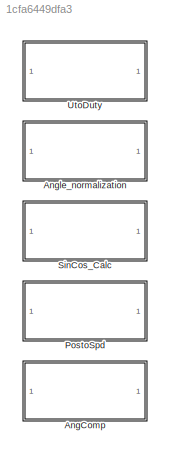
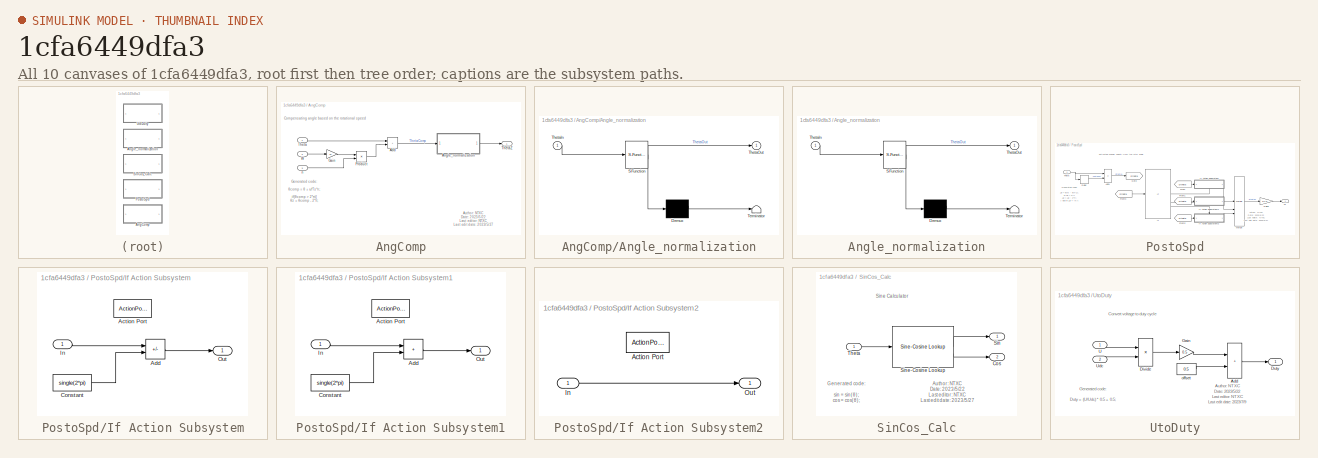
[diagram: thumbnail index - all 10 canvases of the model, root first then tree order]
MODEL slx_1cfa6449dfa3
KIND library
CONFIG AbsTol = auto
CONFIG EnableMultiTasking = off
CONFIG FixedStep = auto
CONFIG MaxStep = auto
CONFIG MinStep = auto
CONFIG RelTol = 1e-3
CONFIG SampleTimeConstraint = Unconstrained
CONFIG SolverName = VariableStepAuto
CONFIG StartTime = 0.0
CONFIG StopTime = 10.0
BLOCK [SubSystem] AngComp
  RTWFcnNameOpts = Use subsystem name
  RTWFileName = Lib_PMSMCtrl
  RTWFileNameOpts = User specified
  RTWSystemCode = Reusable function
  TreatAsAtomicUnit = on
BLOCK [Sum] AngComp/Add
  IconShape = rectangular
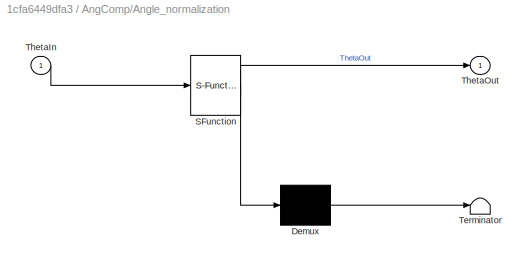
BLOCK [SubSystem] AngComp/Angle_normalization
  ErrorFcn = Stateflow.Translate.translate
  LibrarySourceBlock = simulink/User-Defined\nFunctions/MATLAB Function
  PermitHierarchicalResolution = ExplicitOnly
  SFBlockType = MATLAB Function
  TreatAsAtomicUnit = on
BLOCK [Demux] AngComp/Angle_normalization/ Demux 
  Outputs = 1
BLOCK [S-Function] AngComp/Angle_normalization/ SFunction 
  EnableBusSupport = off
  FunctionName = sf_sfun
  PortCounts = [1 2]
  SFcnIsStateOwnerBlock = off
  SFunctionDeploymentMode = off
  Tag = Stateflow S-Function 1
BLOCK [Terminator] AngComp/Angle_normalization/ Terminator 
BLOCK [Inport] AngComp/Angle_normalization/ThetaIn
BLOCK [Outport] AngComp/Angle_normalization/ThetaOut
BLOCK [Gain] AngComp/Gain
  Gain = Ts
BLOCK [Product] AngComp/Product
BLOCK [Inport] AngComp/Theta
BLOCK [Outport] AngComp/ThetaZ
BLOCK [Inport] AngComp/W
  Port = 2
BLOCK [Inport] AngComp/n
  Port = 3
BLOCK [SubSystem] Angle_normalization
  ErrorFcn = Stateflow.Translate.translate
  LibrarySourceBlock = simulink/User-Defined\nFunctions/MATLAB Function
  PermitHierarchicalResolution = ExplicitOnly
  SFBlockType = MATLAB Function
  TreatAsAtomicUnit = on
BLOCK [Demux] Angle_normalization/ Demux 
  Outputs = 1
BLOCK [S-Function] Angle_normalization/ SFunction 
  EnableBusSupport = off
  FunctionName = sf_sfun
  PortCounts = [1 2]
  SFcnIsStateOwnerBlock = off
  SFunctionDeploymentMode = off
  Tag = Stateflow S-Function 2
BLOCK [Terminator] Angle_normalization/ Terminator 
BLOCK [Inport] Angle_normalization/ThetaIn
BLOCK [Outport] Angle_normalization/ThetaOut
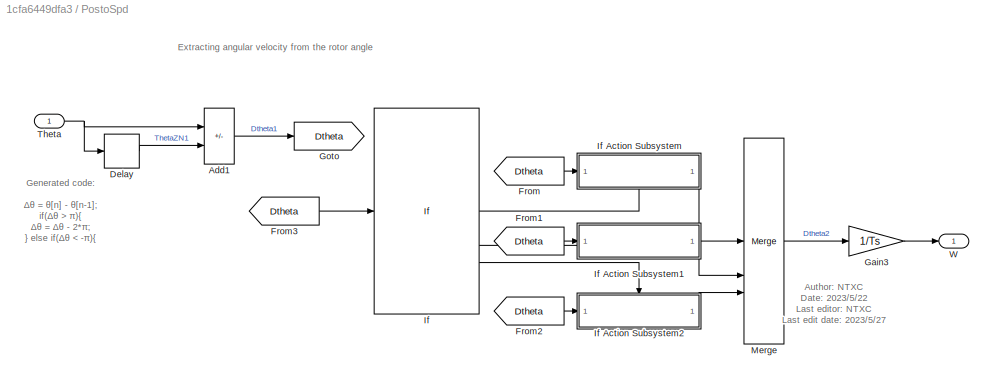
BLOCK [SubSystem] PostoSpd
  RTWFcnNameOpts = Use subsystem name
  RTWFileName = Lib_PMSMCtrl
  RTWFileNameOpts = User specified
  RTWSystemCode = Reusable function
  TreatAsAtomicUnit = on
BLOCK [Sum] PostoSpd/Add1
  IconShape = rectangular
  Inputs = +-
BLOCK [Delay] PostoSpd/Delay
  DelayLength = 1
  InputPortMap = u0
BLOCK [From] PostoSpd/From
  GotoTag = Dtheta
BLOCK [From] PostoSpd/From1
  GotoTag = Dtheta
BLOCK [From] PostoSpd/From2
  GotoTag = Dtheta
BLOCK [From] PostoSpd/From3
  GotoTag = Dtheta
BLOCK [Gain] PostoSpd/Gain3
  Gain = 1/Ts
BLOCK [Goto] PostoSpd/Goto
  GotoTag = Dtheta
BLOCK [If] PostoSpd/If
  ElseIfExpressions = u1 < single(-pi)
  IfExpression = u1 > single(pi)
BLOCK [SubSystem] PostoSpd/If Action Subsystem
  TreatAsAtomicUnit = on
BLOCK [ActionPort] PostoSpd/If Action Subsystem/Action Port
  ActionPortLabel = if(u1 > single(pi))
BLOCK [Sum] PostoSpd/If Action Subsystem/Add
  IconShape = rectangular
  Inputs = +-
BLOCK [Constant] PostoSpd/If Action Subsystem/Constant
  OutDataTypeStr = single
  SampleTime = -1
  Value = single(2*pi)
BLOCK [Inport] PostoSpd/If Action Subsystem/In
BLOCK [Outport] PostoSpd/If Action Subsystem/Out
BLOCK [SubSystem] PostoSpd/If Action Subsystem1
  TreatAsAtomicUnit = on
BLOCK [ActionPort] PostoSpd/If Action Subsystem1/Action Port
  ActionPortLabel = elseif(u1 < single(-pi))
BLOCK [Sum] PostoSpd/If Action Subsystem1/Add
  IconShape = rectangular
BLOCK [Constant] PostoSpd/If Action Subsystem1/Constant
  OutDataTypeStr = single
  SampleTime = -1
  Value = single(2*pi)
BLOCK [Inport] PostoSpd/If Action Subsystem1/In
BLOCK [Outport] PostoSpd/If Action Subsystem1/Out
BLOCK [SubSystem] PostoSpd/If Action Subsystem2
  TreatAsAtomicUnit = on
BLOCK [ActionPort] PostoSpd/If Action Subsystem2/Action Port
  ActionPortLabel = else
BLOCK [Inport] PostoSpd/If Action Subsystem2/In
BLOCK [Outport] PostoSpd/If Action Subsystem2/Out
BLOCK [Merge] PostoSpd/Merge
  Inputs = 3
BLOCK [Inport] PostoSpd/Theta
BLOCK [Outport] PostoSpd/W
BLOCK [SubSystem] SinCos_Calc
  RTWFcnNameOpts = Use subsystem name
  RTWFileName = Lib_PMSMCtrl
  RTWFileNameOpts = User specified
  RTWSystemCode = Reusable function
  TreatAsAtomicUnit = on
BLOCK [Outport] SinCos_Calc/Cos
  Port = 2
BLOCK [Outport] SinCos_Calc/Sin
BLOCK [Reference] SinCos_Calc/Sine-Cosine Lookup  REF=mcbcontrolslib/Sine-Cosine Lookup
  SourceBlock = mcbcontrolslib/Sine-Cosine Lookup
  SourceType = Sine-Cosine Lookup
BLOCK [Inport] SinCos_Calc/Theta
BLOCK [SubSystem] UtoDuty
  RTWFcnNameOpts = Use subsystem name
  RTWFileName = Lib_PMSMCtrl
  RTWFileNameOpts = User specified
  RTWSystemCode = Reusable function
  TreatAsAtomicUnit = on
BLOCK [Sum] UtoDuty/Add
  IconShape = rectangular
BLOCK [Product] UtoDuty/Divide
  Inputs = */
BLOCK [Outport] UtoDuty/Duty
BLOCK [Gain] UtoDuty/Gain
  Gain = 0.5
BLOCK [Inport] UtoDuty/U
BLOCK [Inport] UtoDuty/Udc
  Port = 2
BLOCK [Constant] UtoDuty/offset
  OutDataTypeStr = single
  SampleTime = -1
  Value = 0.5
ANNOTATION AngComp: Compensating angle based on the rotational speed
ANNOTATION AngComp: Author: NTXC Date: 2023/5/22 Last editor: NTXC Last edit date: 2023/5/27
ANNOTATION AngComp: Generated code: θcomp = θ + ω*Ts*n; if(θcomp > 2*π){ θz = θcomp - 2*π; } else if(θcomp < 0){ θz = θcomp + 2*π; } else{ θz = θcomp; }
ANNOTATION PostoSpd: Extracting angular velocity from the rotor angle
ANNOTATION PostoSpd: Author: NTXC Date: 2023/5/22 Last editor: NTXC Last edit date: 2023/5/27
ANNOTATION PostoSpd: Generated code: Δθ = θ[n] - θ[n-1]; if(Δθ > π){ Δθ = Δθ - 2*π; } else if(Δθ < -π){ Δθ = Δθ + 2*π; } else{ Δθ = Δθ; } ω = Δθ / Ts;
ANNOTATION SinCos_Calc: Sine Calculator
ANNOTATION SinCos_Calc: Author: NTXC Date: 2023/5/22 Last editor: NTXC Last edit date: 2023/5/27
ANNOTATION SinCos_Calc: Generated code: sin = sin(θ); cos = cos(θ);
ANNOTATION UtoDuty: Convert voltage to duty cycle
ANNOTATION UtoDuty: Author: NTXC Date: 2023/5/22 Last editor: NTXC Last edit date: 2023/7/9
ANNOTATION UtoDuty: Generated code: Duty = (U/Udc) * 0.5 + 0.5;
LINE AngComp/Add:1 -> AngComp/Angle_normalization:1
LINE AngComp/Angle_normalization:1 -> AngComp/ThetaZ:1
LINE AngComp/Gain:1 -> AngComp/Product:1
LINE AngComp/Product:1 -> AngComp/Add:2
LINE AngComp/Theta:1 -> AngComp/Add:1
LINE AngComp/W:1 -> AngComp/Gain:1
LINE AngComp/n:1 -> AngComp/Product:2
LINE PostoSpd/Add1:1 -> PostoSpd/Goto:1
LINE PostoSpd/Delay:1 -> PostoSpd/Add1:2
LINE PostoSpd/From1:1 -> PostoSpd/If Action Subsystem1:1
LINE PostoSpd/From2:1 -> PostoSpd/If Action Subsystem2:1
LINE PostoSpd/From3:1 -> PostoSpd/If:1
LINE PostoSpd/From:1 -> PostoSpd/If Action Subsystem:1
LINE PostoSpd/Gain3:1 -> PostoSpd/W:1
LINE PostoSpd/If Action Subsystem/Add:1 -> PostoSpd/If Action Subsystem/Out:1
LINE PostoSpd/If Action Subsystem/Constant:1 -> PostoSpd/If Action Subsystem/Add:2
LINE PostoSpd/If Action Subsystem/In:1 -> PostoSpd/If Action Subsystem/Add:1
LINE PostoSpd/If Action Subsystem1/Add:1 -> PostoSpd/If Action Subsystem1/Out:1
LINE PostoSpd/If Action Subsystem1/Constant:1 -> PostoSpd/If Action Subsystem1/Add:2
LINE PostoSpd/If Action Subsystem1/In:1 -> PostoSpd/If Action Subsystem1/Add:1
LINE PostoSpd/If Action Subsystem1:1 -> PostoSpd/Merge:2
LINE PostoSpd/If Action Subsystem2/In:1 -> PostoSpd/If Action Subsystem2/Out:1
LINE PostoSpd/If Action Subsystem2:1 -> PostoSpd/Merge:3
LINE PostoSpd/If Action Subsystem:1 -> PostoSpd/Merge:1
LINE PostoSpd/If:1 -> PostoSpd/If Action Subsystem:ifaction
LINE PostoSpd/If:2 -> PostoSpd/If Action Subsystem1:ifaction
LINE PostoSpd/If:3 -> PostoSpd/If Action Subsystem2:ifaction
LINE PostoSpd/Merge:1 -> PostoSpd/Gain3:1
NET PostoSpd/Theta:1 -> PostoSpd/Add1:1, PostoSpd/Delay:1
LINE SinCos_Calc/Sine-Cosine Lookup:1 -> SinCos_Calc/Sin:1
LINE SinCos_Calc/Sine-Cosine Lookup:2 -> SinCos_Calc/Cos:1
LINE SinCos_Calc/Theta:1 -> SinCos_Calc/Sine-Cosine Lookup:1
LINE UtoDuty/Add:1 -> UtoDuty/Duty:1
LINE UtoDuty/Divide:1 -> UtoDuty/Gain:1
LINE UtoDuty/Gain:1 -> UtoDuty/Add:1
LINE UtoDuty/U:1 -> UtoDuty/Divide:1
LINE UtoDuty/Udc:1 -> UtoDuty/Divide:2
LINE UtoDuty/offset:1 -> UtoDuty/Add:2
note: NET lines group one-source signal fan-out (src -> all destinations, sorted); 1:1 wires keep LINE
CHART Angle_normalization states=1 transitions=1
  STATE_LABEL 'eML_blk_kernel()'
  STATE_LABEL 'SCRIPT:\nfunction ThetaOut = fcn(ThetaIn)\n\n% Author: NTXC\n% Date: 2023/5/22\n% Last editor: NTXC\n% Last edit date: 2023/5/27\n%\n% Description: Normalize any angle value to the range of 0 to 2π.\n\nTheta = ThetaIn;\n\nwhile(Theta > single(2*pi))\n    Theta = Theta - single(2*pi);\nend\n\nwhile(Theta < single(0))\n    Theta = Theta + single(2*pi);\nend\n\nThetaOut = Theta;'
CHART AngComp/Angle_normalization states=1 transitions=1
  STATE_LABEL 'eML_blk_kernel()'
  STATE_LABEL 'SCRIPT:\nfunction ThetaOut = fcn(ThetaIn)\n\n% Author: NTXC\n% Date: 2023/5/22\n% Last editor: NTXC\n% Last edit date: 2023/5/27\n%\n% Description: Normalize any angle value to the range of 0 to 2π.\n\nTheta = ThetaIn;\n\nwhile(Theta > single(2*pi))\n    Theta = Theta - single(2*pi);\nend\n\nwhile(Theta < single(0))\n    Theta = Theta + single(2*pi);\nend\n\nThetaOut = Theta;'
CHART  states=0 transitions=0
CHART  states=0 transitions=0
